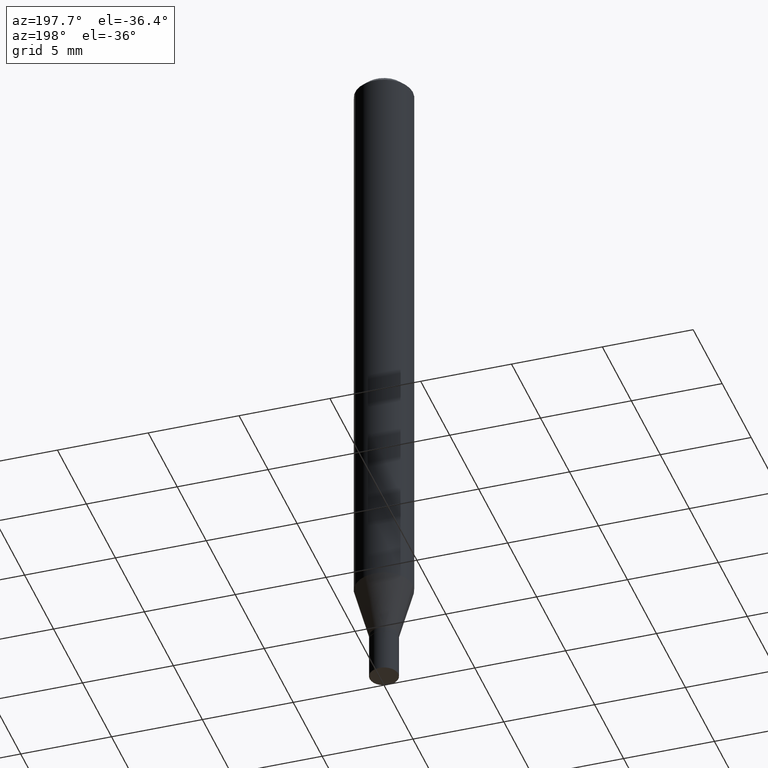
[diagram: clean part render]
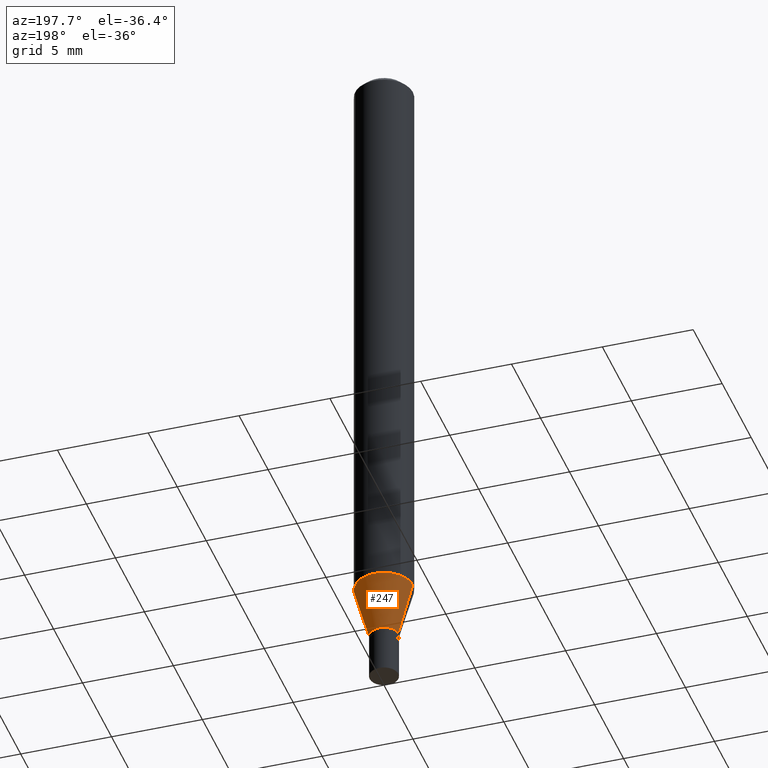
[diagram: same view with one face highlighted and labeled with its STEP entity id]
A machine part, auxiliary view. The second image highlights one B-rep face of the part: STEP entity #247.
In plain terms, the highlighted conical surface has half-angle 15 deg.
Its self-contained STEP definition (entity closure, byte-faithful):
#3 = CIRCLE ( 'NONE', #168, 0.03099999999999992345 ) ;
#8 = DIRECTION ( 'NONE',  ( 1.000000000000000000, -6.982962677686262766E-15, 0.000000000000000000 ) ) ;
#12 = EDGE_CURVE ( 'NONE', #307, #347, #278, .T. ) ;
#28 = AXIS2_PLACEMENT_3D ( 'NONE', #260, #403, #8 ) ;
#33 = DIRECTION ( 'NONE',  ( -0.2588190451025213501, 5.211531920934551042E-15, 0.9659258262890682012 ) ) ;
#47 = VERTEX_POINT ( 'NONE', #458 ) ;
#85 = CARTESIAN_POINT ( 'NONE',  ( 0.03099999999999992345, -5.094071273372148573E-15, -1.397000000000000242 ) ) ;
#105 = LINE ( 'NONE', #137, #313 ) ;
#110 = CARTESIAN_POINT ( 'NONE',  ( 0.06250000000000000000, -4.903577446586667063E-15, -1.279440399561580399 ) ) ;
#126 = VERTEX_POINT ( 'NONE', #427 ) ;
#131 = EDGE_CURVE ( 'NONE', #126, #47, #105, .T. ) ;
#137 = CARTESIAN_POINT ( 'NONE',  ( -0.03099999999999992345, -4.657331182278244567E-15, -1.397000000000000242 ) ) ;
#144 = DIRECTION ( 'NONE',  ( 1.000000000000000000, -6.982962677686255667E-15, 0.000000000000000000 ) ) ;
#151 = ORIENTED_EDGE ( 'NONE', *, *, #367, .T. ) ;
#156 = VECTOR ( 'NONE', #394, 39.37007874015747433 ) ;
#159 = DIRECTION ( 'NONE',  ( -2.445468806185136597E-29, 3.491481338843145583E-15, 1.000000000000000000 ) ) ;
#168 = AXIS2_PLACEMENT_3D ( 'NONE', #305, #159, #382 ) ;
#186 = DIRECTION ( 'NONE',  ( -2.445468806185136597E-29, 3.491481338843145583E-15, 1.000000000000000000 ) ) ;
#214 = CARTESIAN_POINT ( 'NONE',  ( 0.03099999999999992345, -5.094071273372148573E-15, -1.397000000000000242 ) ) ;
#222 = CARTESIAN_POINT ( 'NONE',  ( 3.416319922240636557E-29, -4.877599430363875031E-15, -1.397000000000000242 ) ) ;
#247 = ADVANCED_FACE ( 'NONE', ( #438 ), #357, .T. ) ;
#260 = CARTESIAN_POINT ( 'NONE',  ( 3.128831586500892254E-29, -4.467142279231276182E-15, -1.279440399561580399 ) ) ;
#273 = ORIENTED_EDGE ( 'NONE', *, *, #131, .T. ) ;
#278 = LINE ( 'NONE', #214, #156 ) ;
#305 = CARTESIAN_POINT ( 'NONE',  ( 3.416319922240636557E-29, -4.877599430363875031E-15, -1.397000000000000242 ) ) ;
#307 = VERTEX_POINT ( 'NONE', #85 ) ;
#313 = VECTOR ( 'NONE', #33, 39.37007874015747433 ) ;
#347 = VERTEX_POINT ( 'NONE', #110 ) ;
#354 = EDGE_CURVE ( 'NONE', #347, #47, #402, .T. ) ;
#357 = CONICAL_SURFACE ( 'NONE', #419, 0.03099999999999992345, 0.2617993877991500740 ) ;
#367 = EDGE_CURVE ( 'NONE', #307, #126, #3, .T. ) ;
#382 = DIRECTION ( 'NONE',  ( 1.000000000000000000, -6.982962677686255667E-15, 0.000000000000000000 ) ) ;
#384 = ORIENTED_EDGE ( 'NONE', *, *, #12, .F. ) ;
#394 = DIRECTION ( 'NONE',  ( 0.2588190451025213501, 1.565188264969621968E-15, 0.9659258262890682012 ) ) ;
#402 = CIRCLE ( 'NONE', #28, 0.06250000000000000000 ) ;
#403 = DIRECTION ( 'NONE',  ( -2.445468806185136597E-29, 3.491481338843145583E-15, 1.000000000000000000 ) ) ;
#419 = AXIS2_PLACEMENT_3D ( 'NONE', #222, #186, #144 ) ;
#427 = CARTESIAN_POINT ( 'NONE',  ( -0.03099999999999992345, -4.340192125829728277E-15, -1.397000000000000242 ) ) ;
#434 = ORIENTED_EDGE ( 'NONE', *, *, #354, .F. ) ;
#438 = FACE_OUTER_BOUND ( 'NONE', #455, .T. ) ;
#455 = EDGE_LOOP ( 'NONE', ( #151, #273, #434, #384 ) ) ;
#458 = CARTESIAN_POINT ( 'NONE',  ( -0.06250000000000000000, -4.023053069381213566E-15, -1.279440399561580399 ) ) ;